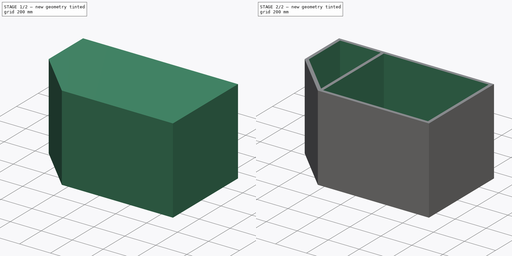
[diagram: build sequence overview — one tinted view per stage of 2, left to right]
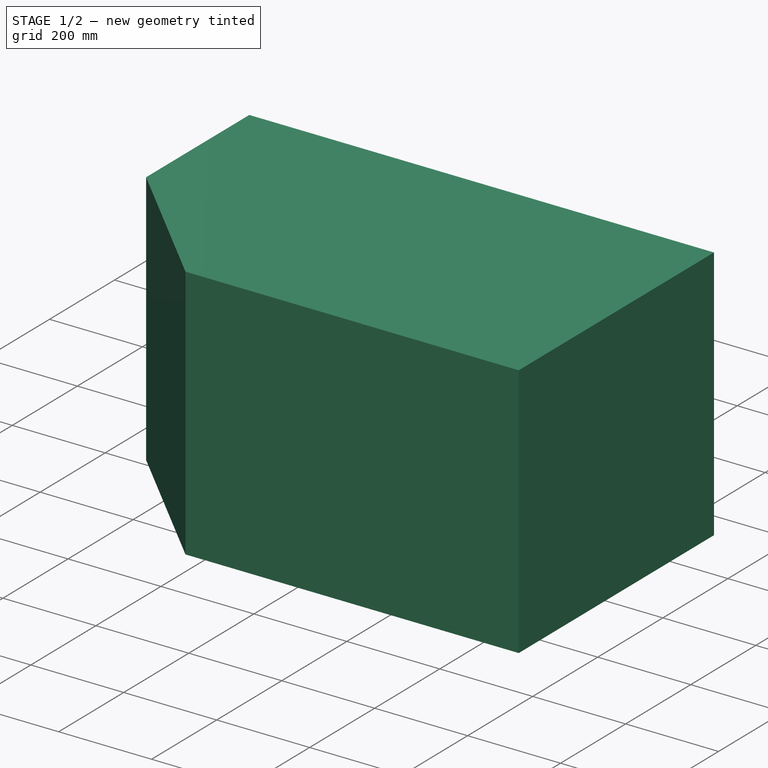
[diagram: stage 1 of 2 — iso view after this stage's code; geometry added in this stage tinted green]
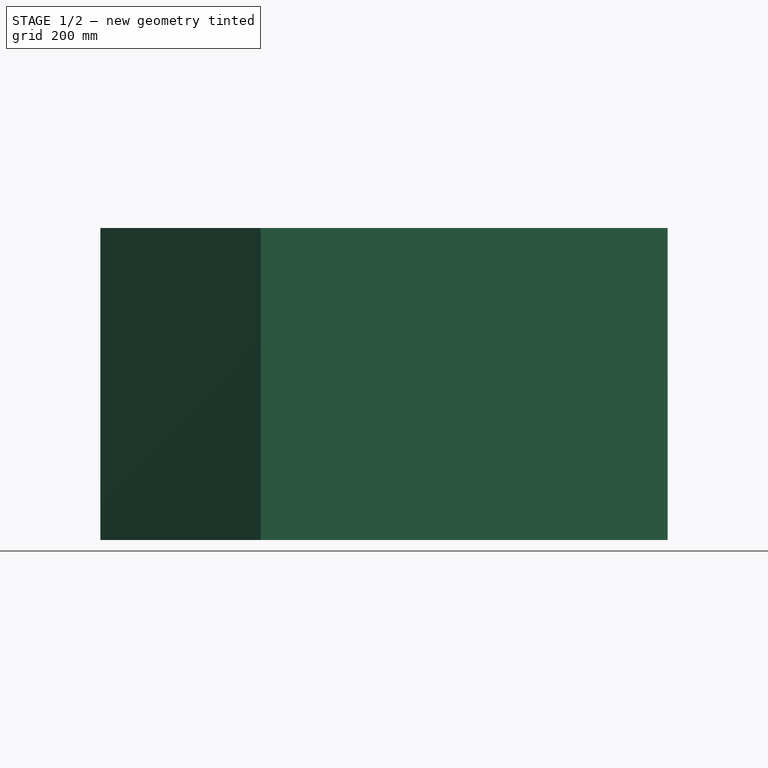
[diagram: stage 1 of 2 — front view after this stage's code; geometry added in this stage tinted green]
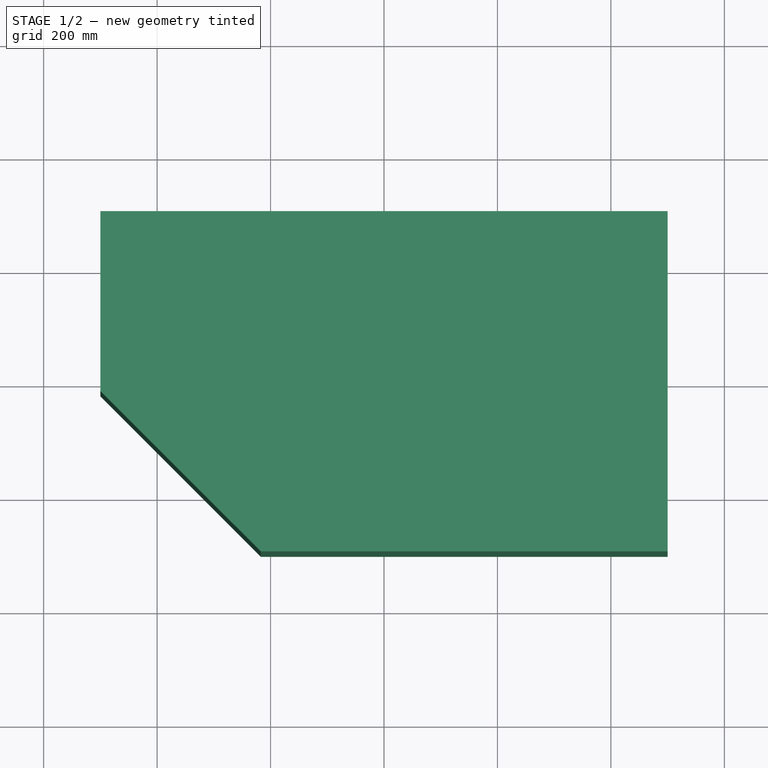
[diagram: stage 1 of 2 — top view after this stage's code; geometry added in this stage tinted green]
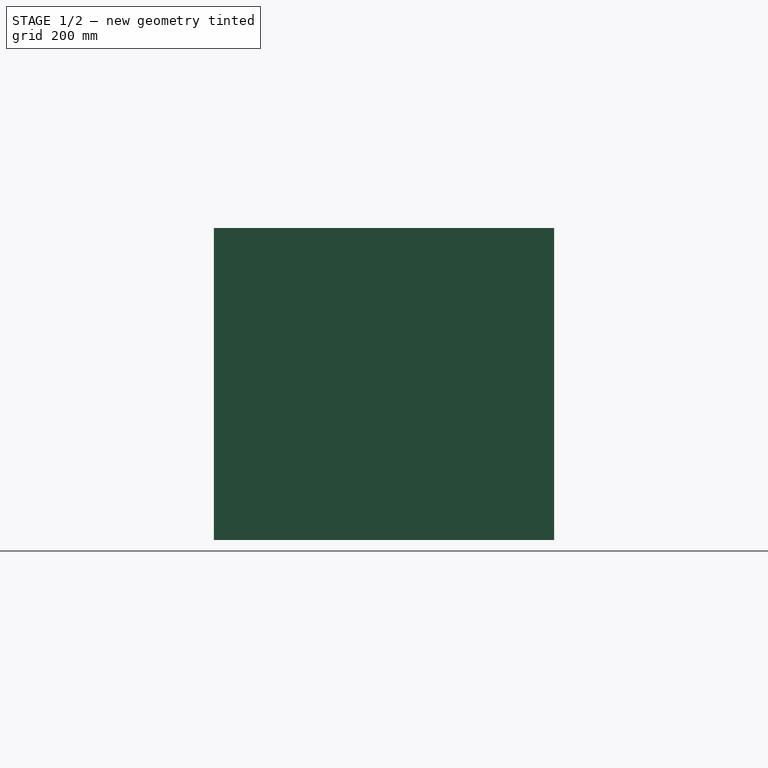
[diagram: stage 1 of 2 — right view after this stage's code; geometry added in this stage tinted green]
FCSTD DOCUMENT  (FreeCAD 0.18R4 (GitTag))
Label: TableChest
License: All rights reserved
LicenseURL: http://en.wikipedia.org/wiki/All_rights_reserved
objects: Sketcher::SketchObject×2, PartDesign::Pad×1, PartDesign::Pocket×1, PartDesign::Body×1
note: 7 computed .brp shape members not serialized (recipe doc carries the construction recipe); baked Part::Feature solids carry a one-line shape summary decoded from their .brp

FEATURE [Sketcher::SketchObject] Sketch
  sketch-geometry (5):
    g0: LineSegment StartX=-500 StartY=300 StartZ=0 EndX=500 EndY=300 EndZ=0
    g1: LineSegment StartX=500 StartY=300 StartZ=0 EndX=500 EndY=-300 EndZ=0
    g2: LineSegment StartX=500 StartY=-300 StartZ=0 EndX=-217.157 EndY=-300 EndZ=0
    g3: LineSegment StartX=-217.157 StartY=-300 StartZ=0 EndX=-500 EndY=-17.1573 EndZ=0
    g4: LineSegment StartX=-500 StartY=-17.1573 StartZ=0 EndX=-500 EndY=300 EndZ=0
  constraints (15):
    c: Horizontal(g0)
    c: Coincident(g0,g1)
    c: Coincident(g2,g3)
    c: Coincident(g3,g4)
    c: Coincident(g4,g0)
    c: Vertical(g4)
    c: Vertical(g1)
    c: DistanceX(g0,g0) = 1000
    c: DistanceY(g2,g0) = 600
    c: DistanceY(g-1,g0) = 300
    c: Angle(g2,g3) = 2.35619
    c: Horizontal(g2)
    c: DistanceX(g0,g-1) = 500
    c: Distance(g3,g2) = 400
    c: Coincident(g2,g1)
FEATURE [Sketcher::SketchObject] Sketch001
  MapMode = 5
  Placement = pos=(0,0,551) rot=(0,0,1;0rad)
  sketch-geometry (8):
    g0: LineSegment StartX=-197.16 StartY=280 StartZ=0 EndX=480 EndY=280 EndZ=0
    g1: LineSegment StartX=480 StartY=280 StartZ=0 EndX=480 EndY=-280 EndZ=0
    g2: LineSegment StartX=480 StartY=-280 StartZ=0 EndX=-197.16 EndY=-280 EndZ=0
    g3: LineSegment StartX=-197.16 StartY=-280 StartZ=0 EndX=-197.16 EndY=280 EndZ=0
    g4: LineSegment StartX=-480 StartY=280 StartZ=0 EndX=-217.16 EndY=280 EndZ=0
    g5: LineSegment StartX=-217.16 StartY=280 StartZ=0 EndX=-217.16 EndY=-270 EndZ=0
    g6: LineSegment StartX=-217.16 StartY=-270 StartZ=0 EndX=-480 EndY=-7.16 EndZ=0
    g7: LineSegment StartX=-480 StartY=-7.16 StartZ=0 EndX=-480 EndY=280 EndZ=0
  constraints (23):
    c: Coincident(g0,g1)
    c: Coincident(g1,g2)
    c: Coincident(g2,g3)
    c: Coincident(g3,g0)
    c: Horizontal(g0)
    c: Horizontal(g2)
    c: Vertical(g3)
    c: Symmetric(g0,g1,g-1)
    c: DistanceY(g-1,g0) = 280
    c: DistanceX(g-1,g0) = 480
    c: Horizontal(g4)
    c: Coincident(g4,g5)
    c: Vertical(g5)
    c: Coincident(g5,g6)
    c: Coincident(g6,g7)
    c: Vertical(g7)
    c: Coincident(g7,g4)
    c: Angle(g6,g7) = 2.35619
    c: DistanceX(g4,g4) = 262.84
    c: DistanceX(g4,g-1) = 480
    c: DistanceY(g-1,g4) = 280
    c: DistanceX(g2,g1) = 677.16
    c: DistanceY(g6,g4) = 287.16
FEATURE [PartDesign::Pad] Pad
  Length = 550
  Length2 = 100
  Profile = -> Sketch
  Type = 0
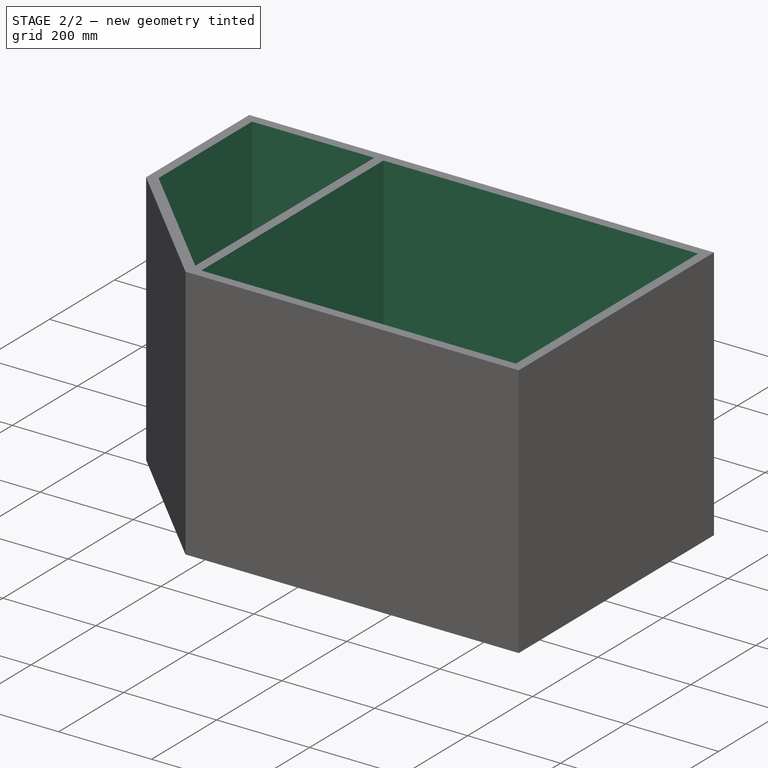
[diagram: stage 2 of 2 — iso view after this stage's code; geometry added in this stage tinted green]
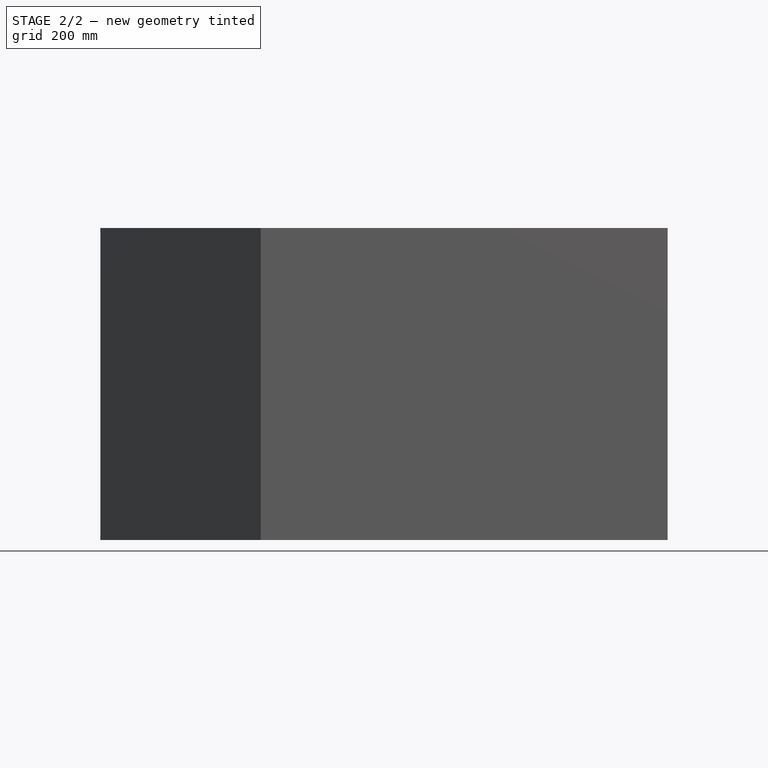
[diagram: stage 2 of 2 — front view after this stage's code; geometry added in this stage tinted green]
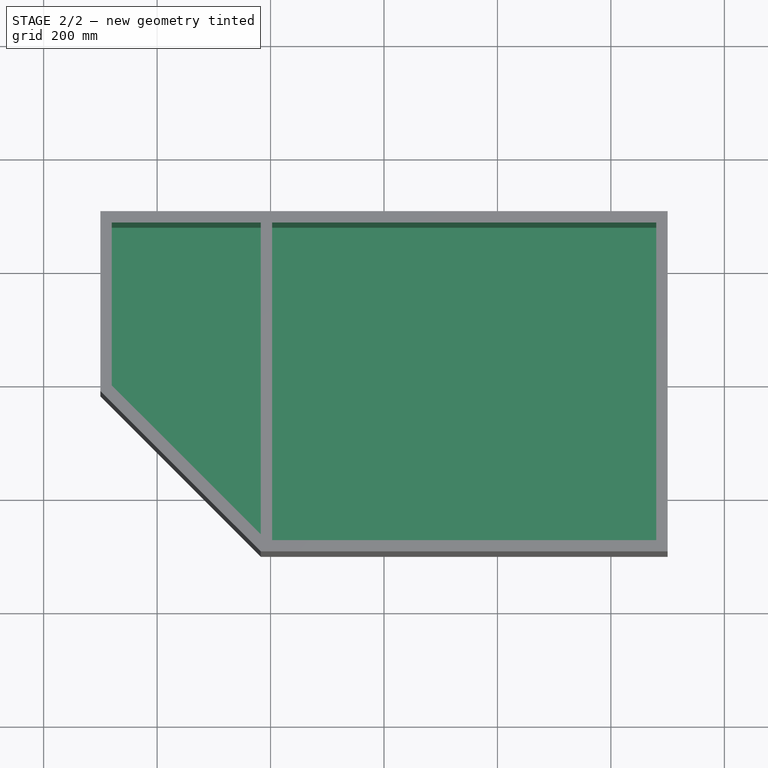
[diagram: stage 2 of 2 — top view after this stage's code; geometry added in this stage tinted green]
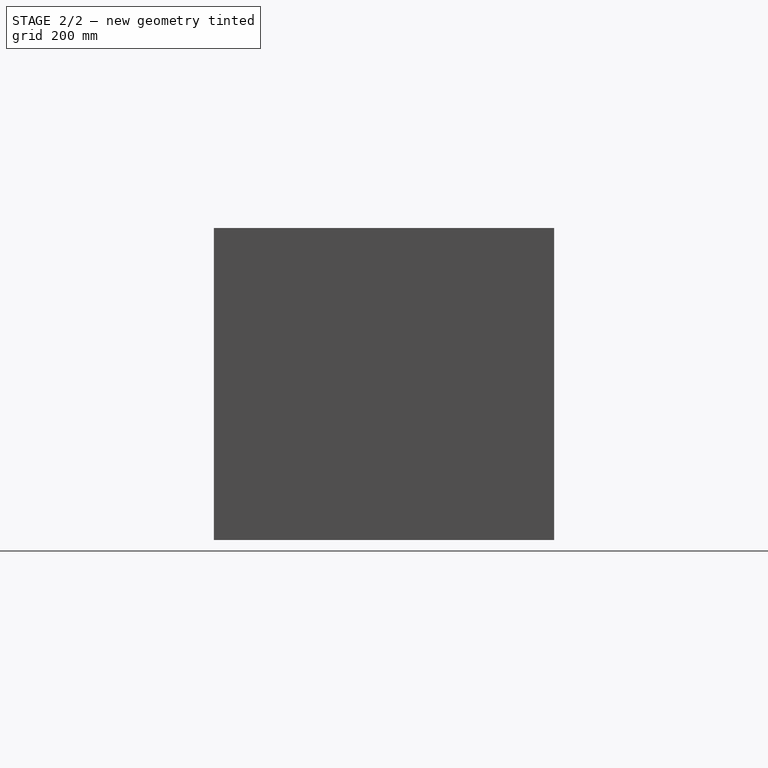
[diagram: stage 2 of 2 — right view after this stage's code; geometry added in this stage tinted green]
FEATURE [PartDesign::Pocket] Pocket
  BaseFeature = -> Pad
  Length = 530
  Length2 = 100
  Profile = -> Sketch001
  Type = 0
FEATURE [PartDesign::Body] Body
  Group = -> [Sketch001,Sketch,Pad,Pocket]
  Origin = -> Origin
  Tip = -> Pocket
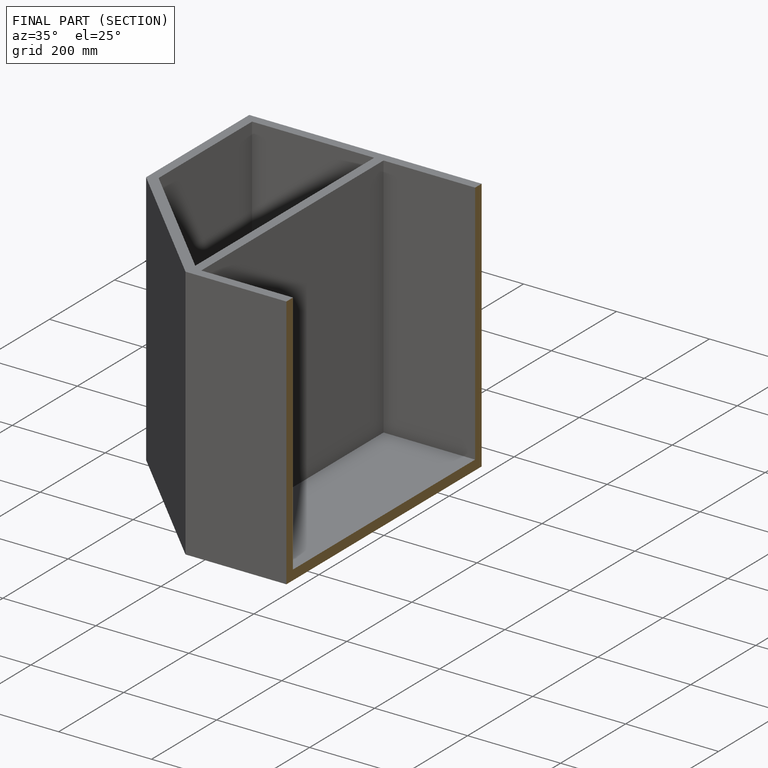
[diagram: finished part — half-section view (interior)]
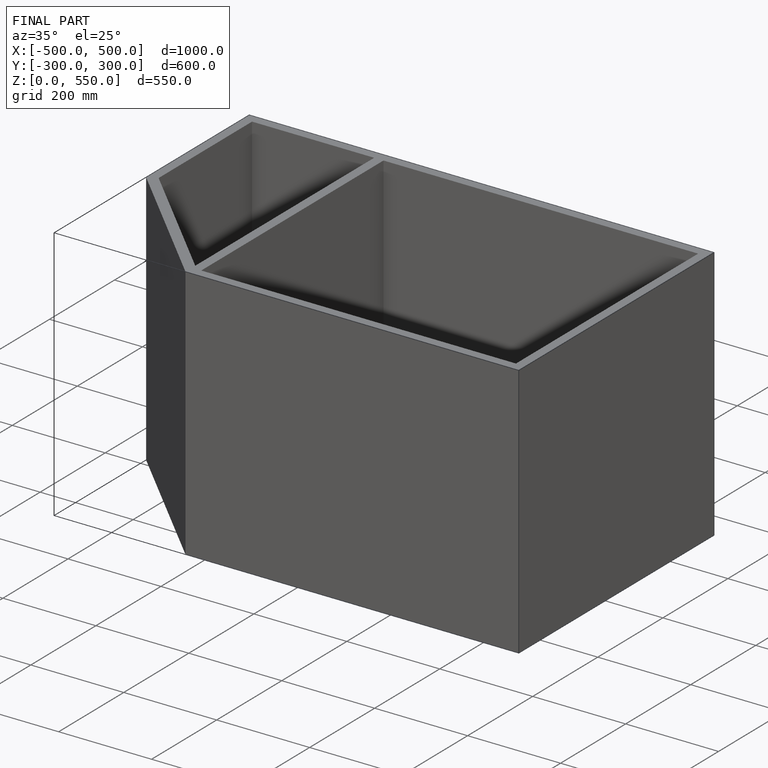
[diagram: finished part — iso view with bounding-box wireframe]
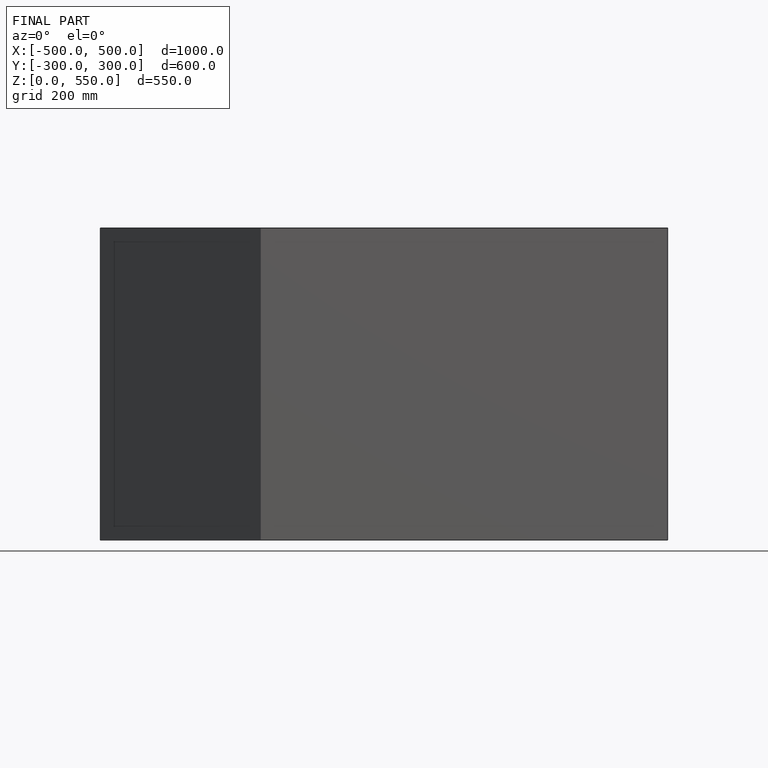
[diagram: finished part — front view with bounding-box wireframe]
